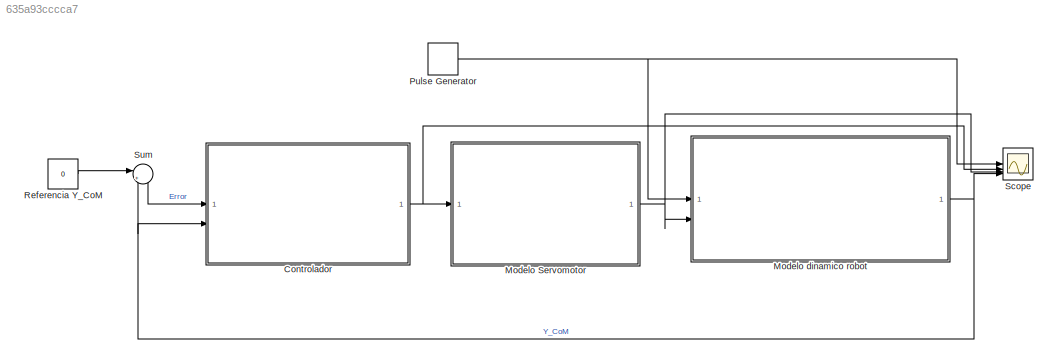
MODEL slx_635a93cccca7
KIND model
CONFIG AbsTol = auto
CONFIG EnableMultiTasking = off
CONFIG FixedStep = auto
CONFIG MaxStep = auto
CONFIG MinStep = auto
CONFIG RelTol = 1e-3
CONFIG SampleTimeConstraint = Unconstrained
CONFIG SolverName = VariableStepAuto
CONFIG StartTime = 0.0
CONFIG StopTime = 5.0
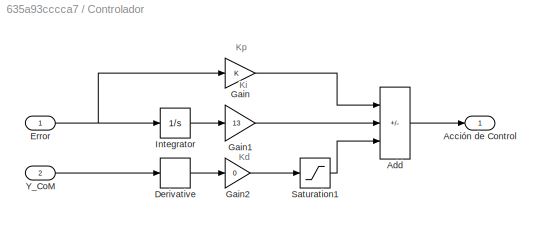
BLOCK [SubSystem] Controlador
BLOCK [Outport] Controlador/Acción de Control
BLOCK [Sum] Controlador/Add
  IconShape = rectangular
  Inputs = ++-
BLOCK [Derivative] Controlador/Derivative
BLOCK [Inport] Controlador/Error
BLOCK [Gain] Controlador/Gain
BLOCK [Gain] Controlador/Gain1
  Gain = 13
BLOCK [Gain] Controlador/Gain2
  Gain = 0
BLOCK [Integrator] Controlador/Integrator
BLOCK [Saturate] Controlador/Saturation1
  LowerLimit = -10
  UpperLimit = 10
BLOCK [Inport] Controlador/Y_CoM
  Port = 2
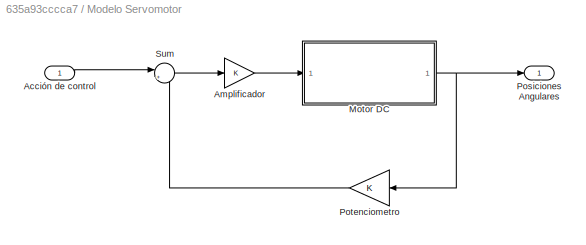
BLOCK [SubSystem] Modelo Servomotor
BLOCK [Inport] Modelo Servomotor/Acción de control
BLOCK [Gain] Modelo Servomotor/Amplificador
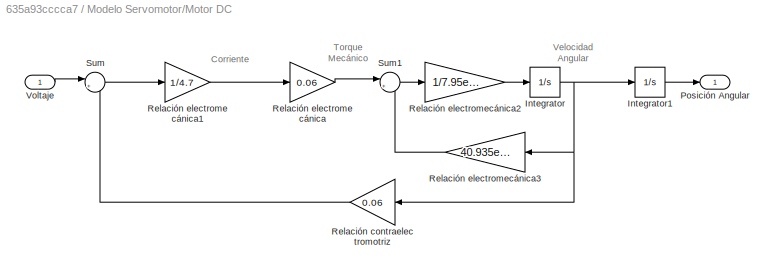
BLOCK [SubSystem] Modelo Servomotor/Motor DC
BLOCK [Integrator] Modelo Servomotor/Motor DC/Integrator
BLOCK [Integrator] Modelo Servomotor/Motor DC/Integrator1
BLOCK [Outport] Modelo Servomotor/Motor DC/Posición Angular
BLOCK [Gain] Modelo Servomotor/Motor DC/Relación contraelectromotriz
  Gain = 0.06
BLOCK [Gain] Modelo Servomotor/Motor DC/Relación electromecánica
  Gain = 0.06
BLOCK [Gain] Modelo Servomotor/Motor DC/Relación electromecánica1
  Gain = 1/4.7
BLOCK [Gain] Modelo Servomotor/Motor DC/Relación electromecánica2
  Gain = 1/7.95e-6
BLOCK [Gain] Modelo Servomotor/Motor DC/Relación electromecánica3
  Gain = 40.935e-6
  NameLocation = top
BLOCK [Sum] Modelo Servomotor/Motor DC/Sum
  Inputs = |+-
BLOCK [Sum] Modelo Servomotor/Motor DC/Sum1
  Inputs = |+-
BLOCK [Inport] Modelo Servomotor/Motor DC/Voltaje
BLOCK [Outport] Modelo Servomotor/Posiciones Angulares
BLOCK [Gain] Modelo Servomotor/Potenciometro
  NameLocation = top
BLOCK [Sum] Modelo Servomotor/Sum
  Inputs = |+-
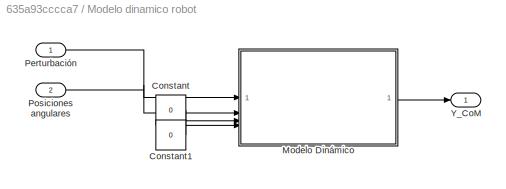
BLOCK [SubSystem] Modelo dinamico robot
BLOCK [Constant] Modelo dinamico robot/Constant
  Value = 0
BLOCK [Constant] Modelo dinamico robot/Constant1
  Value = 0
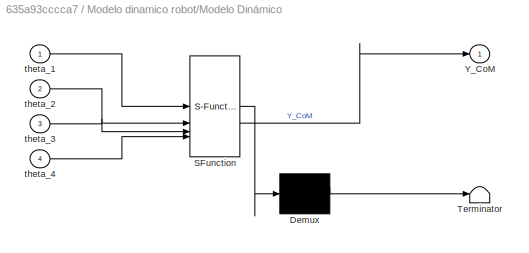
BLOCK [SubSystem] Modelo dinamico robot/Modelo Dinámico
  ErrorFcn = Stateflow.Translate.translate
  LibrarySourceBlock = simulink/User-Defined\nFunctions/MATLAB Function
  PermitHierarchicalResolution = ExplicitOnly
  SFBlockType = MATLAB Function
  TreatAsAtomicUnit = on
BLOCK [Demux] Modelo dinamico robot/Modelo Dinámico/ Demux 
  Outputs = 1
BLOCK [S-Function] Modelo dinamico robot/Modelo Dinámico/ SFunction 
  EnableBusSupport = on
  FunctionName = sf_sfun
  PortCounts = [4 2]
  SFcnIsStateOwnerBlock = off
  SFunctionDeploymentMode = off
  Tag = Stateflow S-Function 2
BLOCK [Terminator] Modelo dinamico robot/Modelo Dinámico/ Terminator 
BLOCK [Outport] Modelo dinamico robot/Modelo Dinámico/Y_CoM
BLOCK [Inport] Modelo dinamico robot/Modelo Dinámico/theta_1
BLOCK [Inport] Modelo dinamico robot/Modelo Dinámico/theta_2
  Port = 2
BLOCK [Inport] Modelo dinamico robot/Modelo Dinámico/theta_3
  Port = 3
BLOCK [Inport] Modelo dinamico robot/Modelo Dinámico/theta_4
  Port = 4
BLOCK [Inport] Modelo dinamico robot/Perturbación
BLOCK [Inport] Modelo dinamico robot/Posiciones angulares
  Port = 2
BLOCK [Outport] Modelo dinamico robot/Y_CoM
BLOCK [DiscretePulseGenerator] Pulse Generator
  Amplitude = 20
  PhaseDelay = 1
  PulseType = Time based
  PulseWidth = 50
BLOCK [Constant] Referencia Y_CoM
  Value = 0
BLOCK [Scope] Scope
  Floating = off
  NumInputPorts = 4
  ScopeSpecificationString = Simulink.scopes.TimeScopeBlockCfg('CurrentConfiguration', extmgr.ConfigurationSet(extmgr.Configuration('Core','General UI',true,'FigureColor',[1 1 1]),extmgr.Configuration('Core','Source UI',true),extmgr.Configuration('Sources','WiredSimulink',true),extmgr.Configuration('Visuals','Time Domain',true,'SerializedDisplays',{struct('MinYLimReal','-17.91597','MaxYLimReal','24.21289','YLabelReal','','Min...<+1997ch>
BLOCK [Sum] Sum
  Inputs = |+-
ANNOTATION Controlador: Kp
ANNOTATION Controlador: Kd
ANNOTATION Controlador: Ki
ANNOTATION Modelo Servomotor/Motor DC: Torque Mecánico
ANNOTATION Modelo Servomotor/Motor DC: Velocidad Angular
ANNOTATION Modelo Servomotor/Motor DC: Corriente
LINE Controlador/Add:1 -> Controlador/Acción de Control:1
LINE Controlador/Derivative:1 -> Controlador/Gain2:1
NET Controlador/Error:1 -> Controlador/Gain:1, Controlador/Integrator:1
LINE Controlador/Gain1:1 -> Controlador/Add:2
LINE Controlador/Gain2:1 -> Controlador/Saturation1:1
LINE Controlador/Gain:1 -> Controlador/Add:1
LINE Controlador/Integrator:1 -> Controlador/Gain1:1
LINE Controlador/Saturation1:1 -> Controlador/Add:3
LINE Controlador/Y_CoM:1 -> Controlador/Derivative:1
NET Controlador:1 -> Modelo Servomotor:1, Scope:2
LINE Modelo Servomotor/Acción de control:1 -> Modelo Servomotor/Sum:1
LINE Modelo Servomotor/Amplificador:1 -> Modelo Servomotor/Motor DC:1
LINE Modelo Servomotor/Motor DC/Integrator1:1 -> Modelo Servomotor/Motor DC/Posición Angular:1
NET Modelo Servomotor/Motor DC/Integrator:1 -> Modelo Servomotor/Motor DC/Integrator1:1, Modelo Servomotor/Motor DC/Relación contraelectromotriz:1, Modelo Servomotor/Motor DC/Relación electromecánica3:1
LINE Modelo Servomotor/Motor DC/Relación contraelectromotriz:1 -> Modelo Servomotor/Motor DC/Sum:2
LINE Modelo Servomotor/Motor DC/Relación electromecánica1:1 -> Modelo Servomotor/Motor DC/Relación electromecánica:1
LINE Modelo Servomotor/Motor DC/Relación electromecánica2:1 -> Modelo Servomotor/Motor DC/Integrator:1
LINE Modelo Servomotor/Motor DC/Relación electromecánica3:1 -> Modelo Servomotor/Motor DC/Sum1:2
LINE Modelo Servomotor/Motor DC/Relación electromecánica:1 -> Modelo Servomotor/Motor DC/Sum1:1
LINE Modelo Servomotor/Motor DC/Sum1:1 -> Modelo Servomotor/Motor DC/Relación electromecánica2:1
LINE Modelo Servomotor/Motor DC/Sum:1 -> Modelo Servomotor/Motor DC/Relación electromecánica1:1
LINE Modelo Servomotor/Motor DC/Voltaje:1 -> Modelo Servomotor/Motor DC/Sum:1
NET Modelo Servomotor/Motor DC:1 -> Modelo Servomotor/Posiciones Angulares:1, Modelo Servomotor/Potenciometro:1
LINE Modelo Servomotor/Potenciometro:1 -> Modelo Servomotor/Sum:2
LINE Modelo Servomotor/Sum:1 -> Modelo Servomotor/Amplificador:1
NET Modelo Servomotor:1 -> Modelo dinamico robot:2, Scope:3
LINE Modelo dinamico robot/Constant1:1 -> Modelo dinamico robot/Modelo Dinámico:4
LINE Modelo dinamico robot/Constant:1 -> Modelo dinamico robot/Modelo Dinámico:3
LINE Modelo dinamico robot/Modelo Dinámico:1 -> Modelo dinamico robot/Y_CoM:1
LINE Modelo dinamico robot/Perturbación:1 -> Modelo dinamico robot/Modelo Dinámico:1
LINE Modelo dinamico robot/Posiciones angulares:1 -> Modelo dinamico robot/Modelo Dinámico:2
NET Modelo dinamico robot:1 -> Controlador:2, Scope:4, Sum:2
NET Pulse Generator:1 -> Modelo dinamico robot:1, Scope:1
LINE Referencia Y_CoM:1 -> Sum:1
LINE Sum:1 -> Controlador:1
note: NET lines group one-source signal fan-out (src -> all destinations, sorted); 1:1 wires keep LINE
CHART Modelo dinamico robot/Modelo Dinámico states=1 transitions=1
  STATE_LABEL 'eML_blk_kernel()'
  STATE_LABEL 'SCRIPT:\nfunction Y_CoM = fcn(theta_1, theta_2, theta_3, theta_4)\n\n% Vector de posiciones angulares\ntheta = [theta_1, theta_2, theta_3, theta_4];\n\n% Vector de longitudes\nL = [4, 24.5, 29, 11];\n\n% Vector de posiciones de articulaciones\nx = [0, 0, 0, 0];\n\n% Calculo de posiciones de articulaciones\ntheta_sum = 0;\nx_ant = 0;\nfor i = 1:length(theta)\n        \n    %Posicion x anterior\n    if i == 1\n       ...<+413ch>'
CHART  states=0 transitions=0
